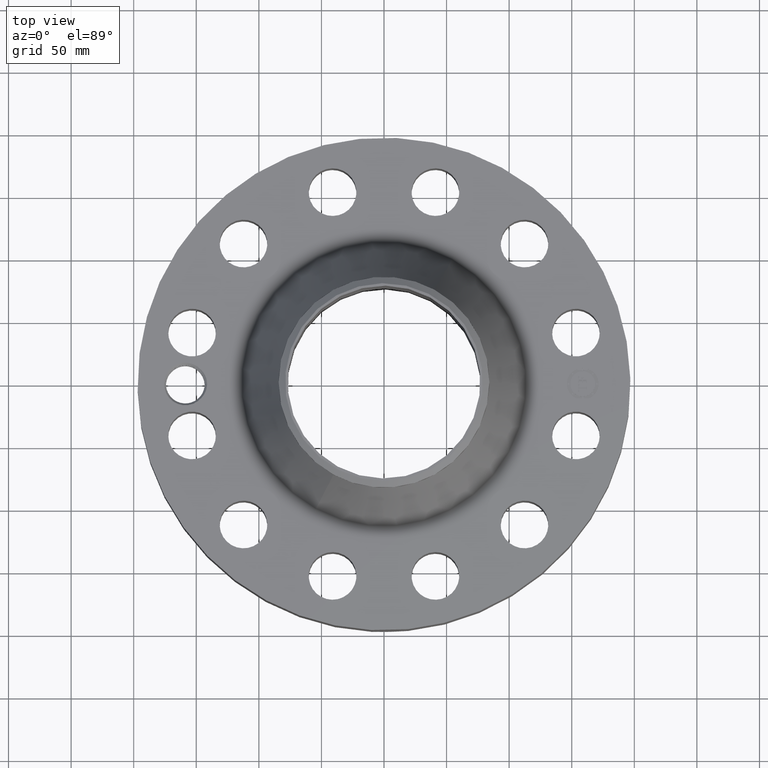
[diagram: clean part render]
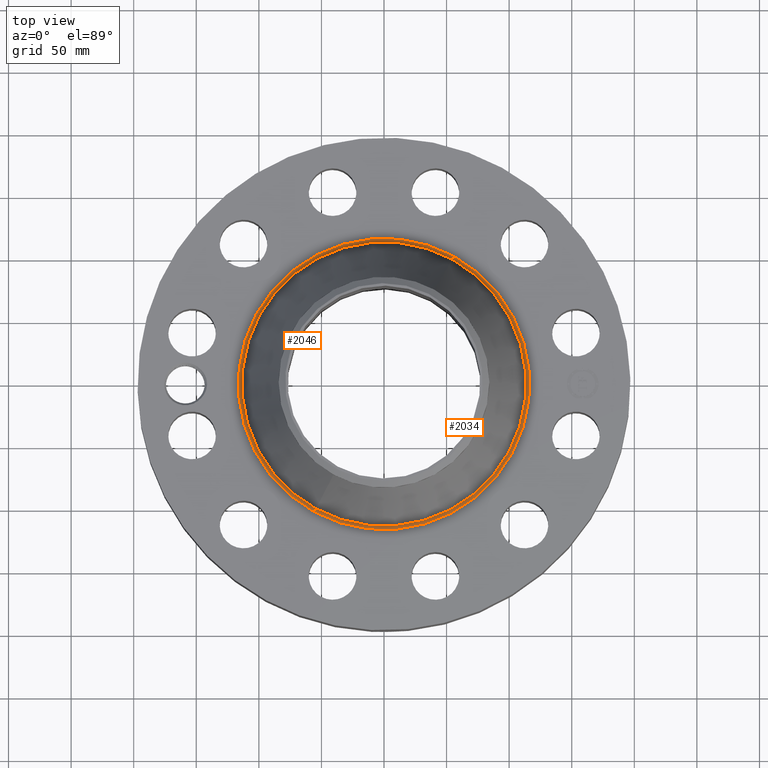
[diagram: same view with one multi-face feature highlighted, each face labeled with its STEP entity id]
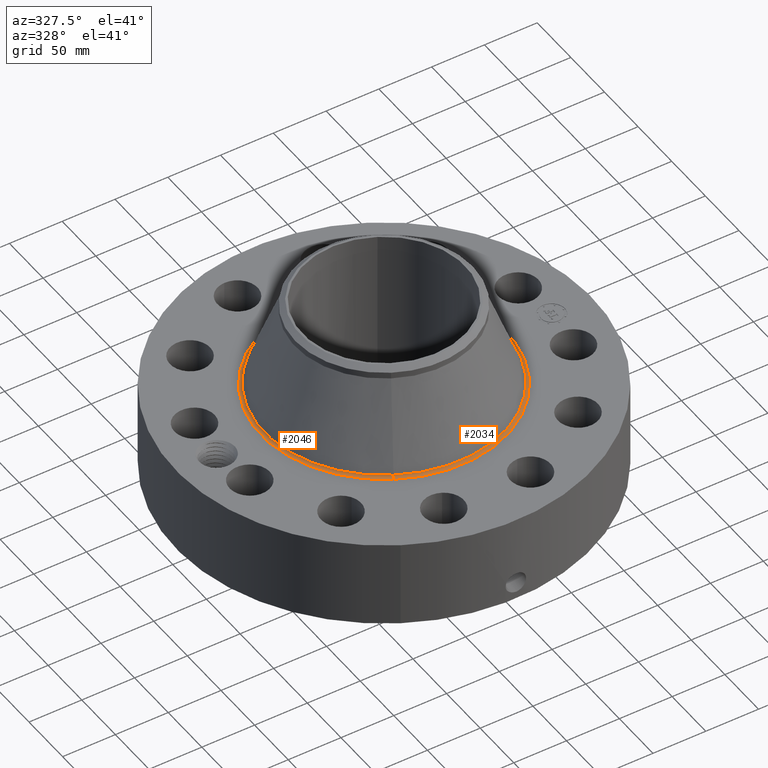
[diagram: same view with one multi-face feature highlighted, each face labeled with its STEP entity id]
A machine part, top view. The highlighted faces form ONE feature: a constant-radius fillet chain: 2 tangent blend faces with common blend radius 3.048 mm. The faces share edges in the B-rep.
A second angle (auxiliary view) of the same feature is appended — it is thin or edge-on in the first view.
Their STEP definitions:
[1] entity #2034 (Torus):
#651=AXIS2_PLACEMENT_3D('Circle Axis2P3D',#649,#650,$) ;
#2007=AXIS2_PLACEMENT_3D('Torus Axis2P3D',#2004,#2005,#2006) ;
#2011=AXIS2_PLACEMENT_3D('Circle Axis2P3D',#2009,#2010,$) ;
#2018=AXIS2_PLACEMENT_3D('Circle Axis2P3D',#2016,#2017,$) ;
#2025=AXIS2_PLACEMENT_3D('Circle Axis2P3D',#2023,#2024,$) ;
#644=CARTESIAN_POINT('Vertex',(-2.19704809512,-4.02166956212,3.50000000001)) ;
#646=CARTESIAN_POINT('Vertex',(2.19704809512,4.02166956212,3.50000000001)) ;
#649=CARTESIAN_POINT('Axis2P3D Location',(0.,0.,3.50000000001)) ;
#2004=CARTESIAN_POINT('Axis2P3D Location',(0.,0.,3.62000000001)) ;
#2009=CARTESIAN_POINT('Axis2P3D Location',(2.19704809512,4.02166956212,3.62000000001)) ;
#2013=CARTESIAN_POINT('Vertex',(2.14329303046,3.92327157629,3.57724220061)) ;
#2016=CARTESIAN_POINT('Axis2P3D Location',(0.,0.,3.57724220061)) ;
#2020=CARTESIAN_POINT('Vertex',(-2.14329303046,-3.92327157629,3.57724220061)) ;
#2023=CARTESIAN_POINT('Axis2P3D Location',(-2.19704809512,-4.02166956212,3.62000000001)) ;
#650=DIRECTION('Axis2P3D Direction',(0.,0.,-0.0393700787402)) ;
#2005=DIRECTION('Axis2P3D Direction',(0.,0.,-0.0393700787402)) ;
#2006=DIRECTION('Axis2P3D XDirection',(-0.0188750212049,-0.0345504945626,0.)) ;
#2010=DIRECTION('Axis2P3D Direction',(-0.0345504945626,0.0188750212049,0.)) ;
#2017=DIRECTION('Axis2P3D Direction',(0.,0.,-0.0393700787402)) ;
#2024=DIRECTION('Axis2P3D Direction',(0.0345504945626,-0.0188750212049,0.)) ;
#2029=ORIENTED_EDGE('',*,*,#653,.F.) ;
#2030=ORIENTED_EDGE('',*,*,#2015,.T.) ;
#2031=ORIENTED_EDGE('',*,*,#2022,.T.) ;
#2032=ORIENTED_EDGE('',*,*,#2027,.F.) ;
#2034=ADVANCED_FACE('PartBody',(#2033),#2008,.F.) ;
#652=CIRCLE('generated circle',#651,4.58266804374) ;
#2012=CIRCLE('generated circle',#2011,0.12) ;
#2019=CIRCLE('generated circle',#2018,4.47054413643) ;
#2026=CIRCLE('generated circle',#2025,0.12) ;
#2008=TOROIDAL_SURFACE('homeo Torus',#2007,4.58266804374,0.12) ;
#653=EDGE_CURVE('',#647,#645,#652,.T.) ;
#2015=EDGE_CURVE('',#647,#2014,#2012,.T.) ;
#2022=EDGE_CURVE('',#2014,#2021,#2019,.T.) ;
#2027=EDGE_CURVE('',#645,#2021,#2026,.T.) ;
#2028=EDGE_LOOP('',(#2029,#2030,#2031,#2032)) ;
#2033=FACE_OUTER_BOUND('',#2028,.T.) ;
#645=VERTEX_POINT('',#644) ;
#647=VERTEX_POINT('',#646) ;
#2014=VERTEX_POINT('',#2013) ;
#2021=VERTEX_POINT('',#2020) ;
[2] entity #2046 (Torus):
#642=AXIS2_PLACEMENT_3D('Circle Axis2P3D',#640,#641,$) ;
#2007=AXIS2_PLACEMENT_3D('Torus Axis2P3D',#2004,#2005,#2006) ;
#2011=AXIS2_PLACEMENT_3D('Circle Axis2P3D',#2009,#2010,$) ;
#2025=AXIS2_PLACEMENT_3D('Circle Axis2P3D',#2023,#2024,$) ;
#2037=AXIS2_PLACEMENT_3D('Circle Axis2P3D',#2035,#2036,$) ;
#640=CARTESIAN_POINT('Axis2P3D Location',(0.,0.,3.50000000001)) ;
#644=CARTESIAN_POINT('Vertex',(-2.19704809512,-4.02166956212,3.50000000001)) ;
#646=CARTESIAN_POINT('Vertex',(2.19704809512,4.02166956212,3.50000000001)) ;
#2004=CARTESIAN_POINT('Axis2P3D Location',(0.,0.,3.62000000001)) ;
#2009=CARTESIAN_POINT('Axis2P3D Location',(2.19704809512,4.02166956212,3.62000000001)) ;
#2013=CARTESIAN_POINT('Vertex',(2.14329303046,3.92327157629,3.57724220061)) ;
#2020=CARTESIAN_POINT('Vertex',(-2.14329303046,-3.92327157629,3.57724220061)) ;
#2023=CARTESIAN_POINT('Axis2P3D Location',(-2.19704809512,-4.02166956212,3.62000000001)) ;
#2035=CARTESIAN_POINT('Axis2P3D Location',(0.,0.,3.57724220061)) ;
#641=DIRECTION('Axis2P3D Direction',(0.,0.,-0.0393700787402)) ;
#2005=DIRECTION('Axis2P3D Direction',(0.,0.,-0.0393700787402)) ;
#2006=DIRECTION('Axis2P3D XDirection',(-0.0188750212049,-0.0345504945626,0.)) ;
#2010=DIRECTION('Axis2P3D Direction',(-0.0345504945626,0.0188750212049,0.)) ;
#2024=DIRECTION('Axis2P3D Direction',(0.0345504945626,-0.0188750212049,0.)) ;
#2036=DIRECTION('Axis2P3D Direction',(0.,0.,-0.0393700787402)) ;
#2041=ORIENTED_EDGE('',*,*,#648,.F.) ;
#2042=ORIENTED_EDGE('',*,*,#2027,.T.) ;
#2043=ORIENTED_EDGE('',*,*,#2039,.T.) ;
#2044=ORIENTED_EDGE('',*,*,#2015,.F.) ;
#2046=ADVANCED_FACE('PartBody',(#2045),#2008,.F.) ;
#643=CIRCLE('generated circle',#642,4.58266804374) ;
#2012=CIRCLE('generated circle',#2011,0.12) ;
#2026=CIRCLE('generated circle',#2025,0.12) ;
#2038=CIRCLE('generated circle',#2037,4.47054413643) ;
#2008=TOROIDAL_SURFACE('homeo Torus',#2007,4.58266804374,0.12) ;
#648=EDGE_CURVE('',#645,#647,#643,.T.) ;
#2015=EDGE_CURVE('',#647,#2014,#2012,.T.) ;
#2027=EDGE_CURVE('',#645,#2021,#2026,.T.) ;
#2039=EDGE_CURVE('',#2021,#2014,#2038,.T.) ;
#2040=EDGE_LOOP('',(#2041,#2042,#2043,#2044)) ;
#2045=FACE_OUTER_BOUND('',#2040,.T.) ;
#645=VERTEX_POINT('',#644) ;
#647=VERTEX_POINT('',#646) ;
#2014=VERTEX_POINT('',#2013) ;
#2021=VERTEX_POINT('',#2020) ;